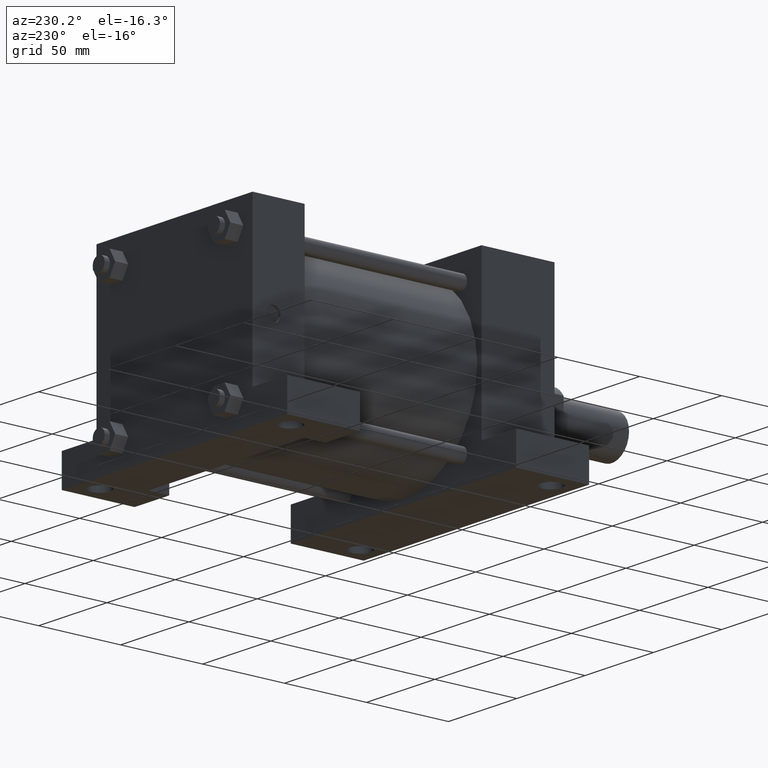
[diagram: clean part render]
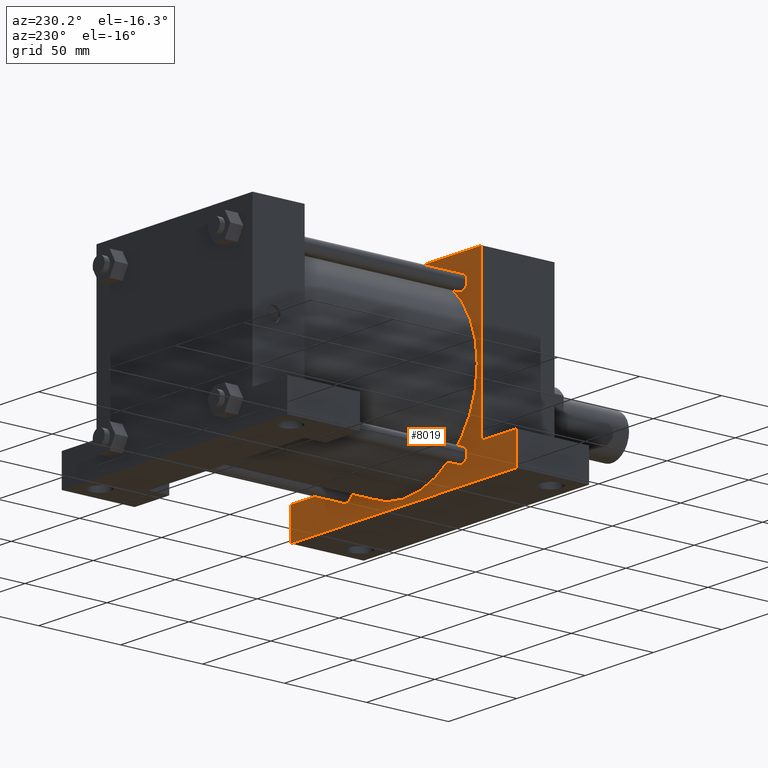
[diagram: same view with one face highlighted and labeled with its STEP entity id]
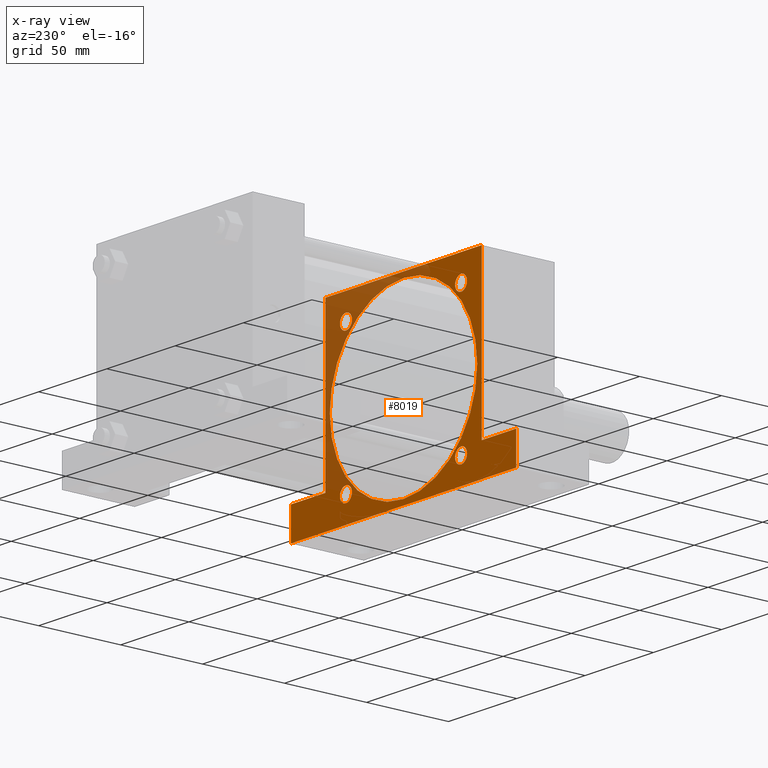
[diagram: x-ray of the same camera — body ghosted, the highlighted face saturated]
A machine part, auxiliary view. The second image highlights one B-rep face of the part: STEP entity #8019.
The next image is the same camera in x-ray: the body ghosted, the highlighted face saturated — about 29% of this face is hidden behind the body in this view.
In plain terms, the highlighted planar face has unit normal (0, -1, 0).
Its self-contained STEP definition (entity closure, byte-faithful):
#490=FACE_OUTER_BOUND('',#496,.T.);
#491=FACE_BOUND('',#497,.T.);
#492=FACE_BOUND('',#498,.T.);
#493=FACE_BOUND('',#499,.T.);
#494=FACE_BOUND('',#500,.T.);
#495=FACE_BOUND('',#501,.T.);
#496=EDGE_LOOP('',(#502));
#497=EDGE_LOOP('',(#511));
#498=EDGE_LOOP('',(#520,#521,#522,#523,#524,#525,#526,#527));
#499=EDGE_LOOP('',(#584));
#500=EDGE_LOOP('',(#593));
#501=EDGE_LOOP('',(#602));
#502=ORIENTED_EDGE('',*,*,#503,.F.);
#503=EDGE_CURVE('',#509,#509,#504,.T.);
#504=CIRCLE('',#505,4.381500000E+000);
#505=AXIS2_PLACEMENT_3D('',#506,#507,#508);
#506=CARTESIAN_POINT('',(4.216400000E+001,8.572500000E+001,4.216400000E+001));
#507=DIRECTION('',(0.0E+000,1.0E+000,0.0E+000));
#508=DIRECTION('',(1.0E+000,0.0E+000,0.0E+000));
#509=VERTEX_POINT('',#510);
#510=CARTESIAN_POINT('',(3.778250000E+001,8.572500000E+001,4.216400000E+001));
#511=ORIENTED_EDGE('',*,*,#512,.F.);
#512=EDGE_CURVE('',#518,#518,#513,.T.);
#513=CIRCLE('',#514,4.381500000E+000);
#514=AXIS2_PLACEMENT_3D('',#515,#516,#517);
#515=CARTESIAN_POINT('',(-4.216400000E+001,8.572500000E+001,-4.216400000E+001));
#516=DIRECTION('',(0.0E+000,1.0E+000,0.0E+000));
#517=DIRECTION('',(1.0E+000,0.0E+000,0.0E+000));
#518=VERTEX_POINT('',#519);
#519=CARTESIAN_POINT('',(-3.778250000E+001,8.572500000E+001,-4.216400000E+001));
#520=ORIENTED_EDGE('',*,*,#528,.T.);
#521=ORIENTED_EDGE('',*,*,#537,.T.);
#522=ORIENTED_EDGE('',*,*,#544,.F.);
#523=ORIENTED_EDGE('',*,*,#551,.T.);
#524=ORIENTED_EDGE('',*,*,#558,.F.);
#525=ORIENTED_EDGE('',*,*,#565,.F.);
#526=ORIENTED_EDGE('',*,*,#572,.F.);
#527=ORIENTED_EDGE('',*,*,#579,.F.);
#528=EDGE_CURVE('',#533,#534,#529,.T.);
#529=LINE('',#530,#531);
#530=CARTESIAN_POINT('',(8.255000000E+001,8.572500000E+001,-3.810000000E+001));
#531=VECTOR('',#532,1.0E+000);
#532=DIRECTION('',(0.0E+000,0.0E+000,-1.0E+000));
#533=VERTEX_POINT('',#535);
#534=VERTEX_POINT('',#536);
#535=CARTESIAN_POINT('',(8.255000000E+001,8.572500000E+001,-3.810000000E+001));
#536=CARTESIAN_POINT('',(8.255000000E+001,8.572500000E+001,-5.715000000E+001));
#537=EDGE_CURVE('',#534,#542,#538,.T.);
#538=LINE('',#539,#540);
#539=CARTESIAN_POINT('',(5.715000000E+001,8.572500000E+001,-5.715000000E+001));
#540=VECTOR('',#541,1.0E+000);
#541=DIRECTION('',(-1.0E+000,0.0E+000,0.0E+000));
#542=VERTEX_POINT('',#543);
#543=CARTESIAN_POINT('',(-8.255000000E+001,8.572500000E+001,-5.715000000E+001));
#544=EDGE_CURVE('',#549,#542,#545,.T.);
#545=LINE('',#546,#547);
#546=CARTESIAN_POINT('',(-8.255000000E+001,8.572500000E+001,-3.810000000E+001));
#547=VECTOR('',#548,1.0E+000);
#548=DIRECTION('',(0.0E+000,0.0E+000,-1.0E+000));
#549=VERTEX_POINT('',#550);
#550=CARTESIAN_POINT('',(-8.255000000E+001,8.572500000E+001,-3.810000000E+001));
#551=EDGE_CURVE('',#549,#556,#552,.T.);
#552=LINE('',#553,#554);
#553=CARTESIAN_POINT('',(-8.255000000E+001,8.572500000E+001,-3.810000000E+001));
#554=VECTOR('',#555,1.0E+000);
#555=DIRECTION('',(1.0E+000,0.0E+000,0.0E+000));
#556=VERTEX_POINT('',#557);
#557=CARTESIAN_POINT('',(-5.715000000E+001,8.572500000E+001,-3.810000000E+001));
#558=EDGE_CURVE('',#563,#556,#559,.T.);
#559=LINE('',#560,#561);
#560=CARTESIAN_POINT('',(-5.715000000E+001,8.572500000E+001,5.715000000E+001));
#561=VECTOR('',#562,1.0E+000);
#562=DIRECTION('',(0.0E+000,0.0E+000,-1.0E+000));
#563=VERTEX_POINT('',#564);
#564=CARTESIAN_POINT('',(-5.715000000E+001,8.572500000E+001,5.715000000E+001));
#565=EDGE_CURVE('',#570,#563,#566,.T.);
#566=LINE('',#567,#568);
#567=CARTESIAN_POINT('',(5.715000000E+001,8.572500000E+001,5.715000000E+001));
#568=VECTOR('',#569,1.0E+000);
#569=DIRECTION('',(-1.0E+000,0.0E+000,0.0E+000));
#570=VERTEX_POINT('',#571);
#571=CARTESIAN_POINT('',(5.715000000E+001,8.572500000E+001,5.715000000E+001));
#572=EDGE_CURVE('',#577,#570,#573,.T.);
#573=LINE('',#574,#575);
#574=CARTESIAN_POINT('',(5.715000000E+001,8.572500000E+001,-5.715000000E+001));
#575=VECTOR('',#576,1.0E+000);
#576=DIRECTION('',(0.0E+000,0.0E+000,1.0E+000));
#577=VERTEX_POINT('',#578);
#578=CARTESIAN_POINT('',(5.715000000E+001,8.572500000E+001,-3.810000000E+001));
#579=EDGE_CURVE('',#533,#577,#580,.T.);
#580=LINE('',#581,#582);
#581=CARTESIAN_POINT('',(8.255000000E+001,8.572500000E+001,-3.810000000E+001));
#582=VECTOR('',#583,1.0E+000);
#583=DIRECTION('',(-1.0E+000,0.0E+000,0.0E+000));
#584=ORIENTED_EDGE('',*,*,#585,.F.);
#585=EDGE_CURVE('',#591,#591,#586,.T.);
#586=CIRCLE('',#587,4.381500000E+000);
#587=AXIS2_PLACEMENT_3D('',#588,#589,#590);
#588=CARTESIAN_POINT('',(-4.216400000E+001,8.572500000E+001,4.216400000E+001));
#589=DIRECTION('',(0.0E+000,1.0E+000,0.0E+000));
#590=DIRECTION('',(1.0E+000,0.0E+000,0.0E+000));
#591=VERTEX_POINT('',#592);
#592=CARTESIAN_POINT('',(-3.778250000E+001,8.572500000E+001,4.216400000E+001));
#593=ORIENTED_EDGE('',*,*,#594,.F.);
#594=EDGE_CURVE('',#600,#600,#595,.T.);
#595=CIRCLE('',#596,4.381500000E+000);
#596=AXIS2_PLACEMENT_3D('',#597,#598,#599);
#597=CARTESIAN_POINT('',(4.216400000E+001,8.572500000E+001,-4.216400000E+001));
#598=DIRECTION('',(0.0E+000,1.0E+000,0.0E+000));
#599=DIRECTION('',(1.0E+000,0.0E+000,0.0E+000));
#600=VERTEX_POINT('',#601);
#601=CARTESIAN_POINT('',(4.654550000E+001,8.572500000E+001,-4.216400000E+001));
#602=ORIENTED_EDGE('',*,*,#603,.F.);
#603=EDGE_CURVE('',#609,#609,#604,.T.);
#604=CIRCLE('',#605,5.397500000E+001);
#605=AXIS2_PLACEMENT_3D('',#606,#607,#608);
#606=CARTESIAN_POINT('',(0.000000000E+000,8.572500000E+001,0.000000000E+000));
#607=DIRECTION('',(0.0E+000,1.0E+000,0.0E+000));
#608=DIRECTION('',(1.0E+000,0.0E+000,0.0E+000));
#609=VERTEX_POINT('',#610);
#610=CARTESIAN_POINT('',(5.397500000E+001,8.572500000E+001,0.000000000E+000));
#611=PLANE('',#612);
#612=AXIS2_PLACEMENT_3D('',#613,#614,#615);
#613=CARTESIAN_POINT('',(5.715000000E+001,8.572500000E+001,-5.715000000E+001));
#614=DIRECTION('',(0.0E+000,-1.0E+000,0.0E+000));
#615=DIRECTION('',(0.0E+000,0.0E+000,-1.0E+000));
#8019=ADVANCED_FACE('',(#490,#491,#492,#493,#494,#495),#611,.F.);